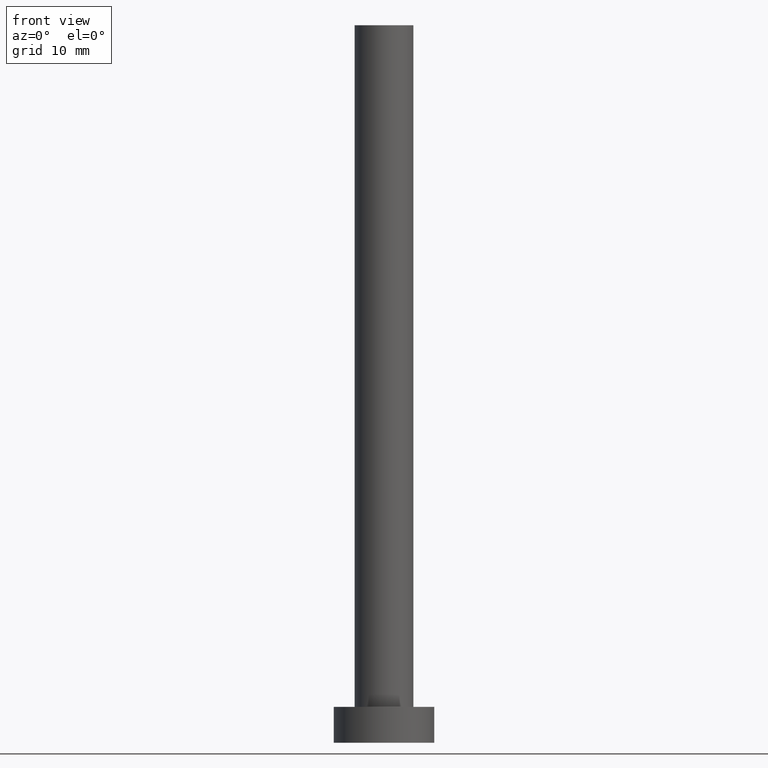
[diagram: clean part render]
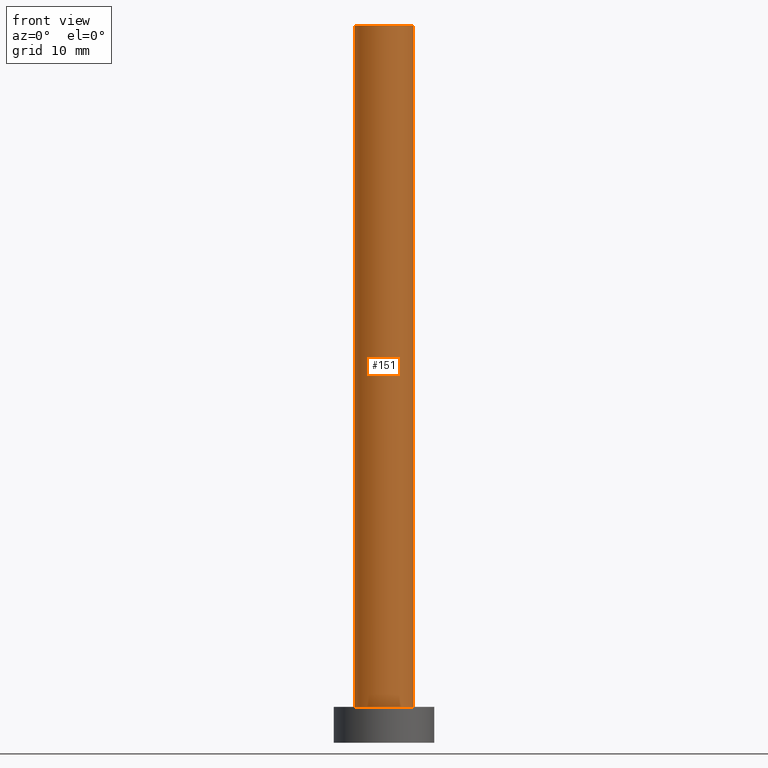
[diagram: same view with one face highlighted and labeled with its STEP entity id]
A machine part, front view. The second image highlights one B-rep face of the part: STEP entity #151.
In plain terms, the highlighted cylindrical surface (edge-blend (fillet) strip) has radius 4.1 mm, axis along (-0, -0, -1).
Its self-contained STEP definition (entity closure, byte-faithful):
#4 = EDGE_CURVE ( 'NONE', #191, #254, #134, .T. ) ;
#5 = CARTESIAN_POINT ( 'NONE',  ( 4.099999999999999645, 5.021051876504147385E-16, 100.0000000000000000 ) ) ;
#6 = DIRECTION ( 'NONE',  ( -0.000000000000000000, -0.000000000000000000, -1.000000000000000000 ) ) ;
#7 = CARTESIAN_POINT ( 'NONE',  ( -4.099999999999999645, 0.000000000000000000, 5.000000000000000000 ) ) ;
#14 = AXIS2_PLACEMENT_3D ( 'NONE', #220, #143, #140 ) ;
#25 = CARTESIAN_POINT ( 'NONE',  ( 0.000000000000000000, 0.000000000000000000, 5.000000000000000000 ) ) ;
#34 = ORIENTED_EDGE ( 'NONE', *, *, #4, .T. ) ;
#42 = CARTESIAN_POINT ( 'NONE',  ( -4.099999999999999645, 0.000000000000000000, 100.0000000000000000 ) ) ;
#53 = AXIS2_PLACEMENT_3D ( 'NONE', #25, #222, #124 ) ;
#55 = CARTESIAN_POINT ( 'NONE',  ( -4.099999999999999645, 0.000000000000000000, 100.0000000000000000 ) ) ;
#63 = DIRECTION ( 'NONE',  ( 0.000000000000000000, 0.000000000000000000, 1.000000000000000000 ) ) ;
#66 = CIRCLE ( 'NONE', #201, 4.099999999999999645 ) ;
#102 = DIRECTION ( 'NONE',  ( 1.000000000000000000, 0.000000000000000000, 0.000000000000000000 ) ) ;
#114 = VERTEX_POINT ( 'NONE', #139 ) ;
#120 = LINE ( 'NONE', #5, #158 ) ;
#124 = DIRECTION ( 'NONE',  ( 1.000000000000000000, 0.000000000000000000, 0.000000000000000000 ) ) ;
#125 = VECTOR ( 'NONE', #215, 1000.000000000000000 ) ;
#131 = ORIENTED_EDGE ( 'NONE', *, *, #161, .T. ) ;
#133 = ORIENTED_EDGE ( 'NONE', *, *, #180, .F. ) ;
#134 = LINE ( 'NONE', #55, #125 ) ;
#135 = VERTEX_POINT ( 'NONE', #241 ) ;
#136 = CIRCLE ( 'NONE', #53, 4.099999999999999645 ) ;
#139 = CARTESIAN_POINT ( 'NONE',  ( 4.099999999999999645, 5.021051876504147385E-16, 100.0000000000000000 ) ) ;
#140 = DIRECTION ( 'NONE',  ( -1.000000000000000000, 0.000000000000000000, 0.000000000000000000 ) ) ;
#143 = DIRECTION ( 'NONE',  ( -0.000000000000000000, -0.000000000000000000, -1.000000000000000000 ) ) ;
#151 = ADVANCED_FACE ( 'NONE', ( #181 ), #157, .T. ) ;
#157 = CYLINDRICAL_SURFACE ( 'NONE', #14, 4.099999999999999645 ) ;
#158 = VECTOR ( 'NONE', #6, 1000.000000000000000 ) ;
#161 = EDGE_CURVE ( 'NONE', #254, #135, #136, .T. ) ;
#174 = ORIENTED_EDGE ( 'NONE', *, *, #192, .F. ) ;
#180 = EDGE_CURVE ( 'NONE', #114, #135, #120, .T. ) ;
#181 = FACE_OUTER_BOUND ( 'NONE', #196, .T. ) ;
#191 = VERTEX_POINT ( 'NONE', #42 ) ;
#192 = EDGE_CURVE ( 'NONE', #191, #114, #66, .T. ) ;
#196 = EDGE_LOOP ( 'NONE', ( #133, #174, #34, #131 ) ) ;
#201 = AXIS2_PLACEMENT_3D ( 'NONE', #240, #63, #102 ) ;
#215 = DIRECTION ( 'NONE',  ( -0.000000000000000000, -0.000000000000000000, -1.000000000000000000 ) ) ;
#220 = CARTESIAN_POINT ( 'NONE',  ( 0.000000000000000000, 0.000000000000000000, 100.0000000000000000 ) ) ;
#222 = DIRECTION ( 'NONE',  ( 0.000000000000000000, 0.000000000000000000, 1.000000000000000000 ) ) ;
#240 = CARTESIAN_POINT ( 'NONE',  ( 0.000000000000000000, 0.000000000000000000, 100.0000000000000000 ) ) ;
#241 = CARTESIAN_POINT ( 'NONE',  ( 4.099999999999999645, 5.021051876504147385E-16, 5.000000000000000000 ) ) ;
#254 = VERTEX_POINT ( 'NONE', #7 ) ;